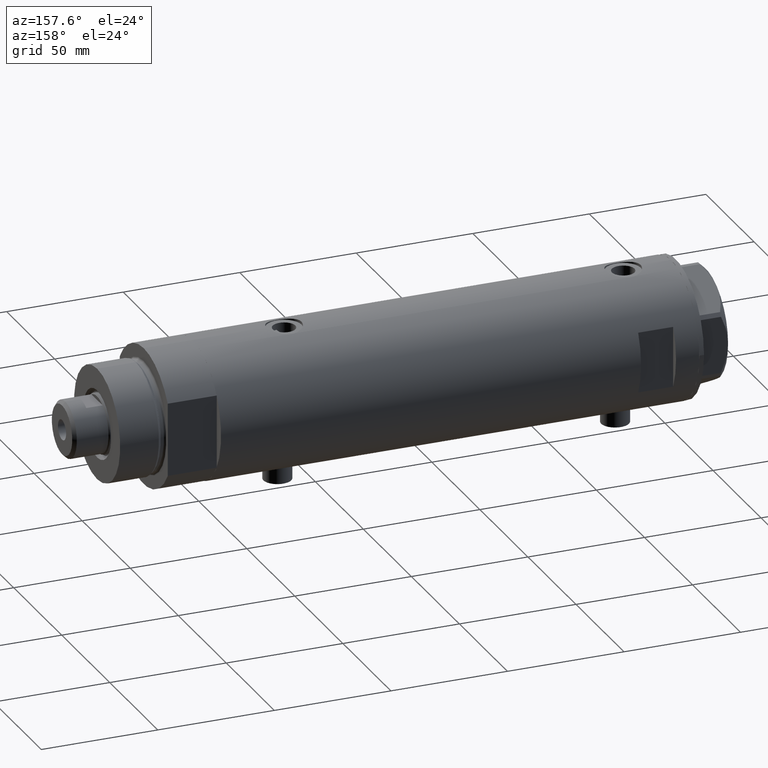
[diagram: clean part render]
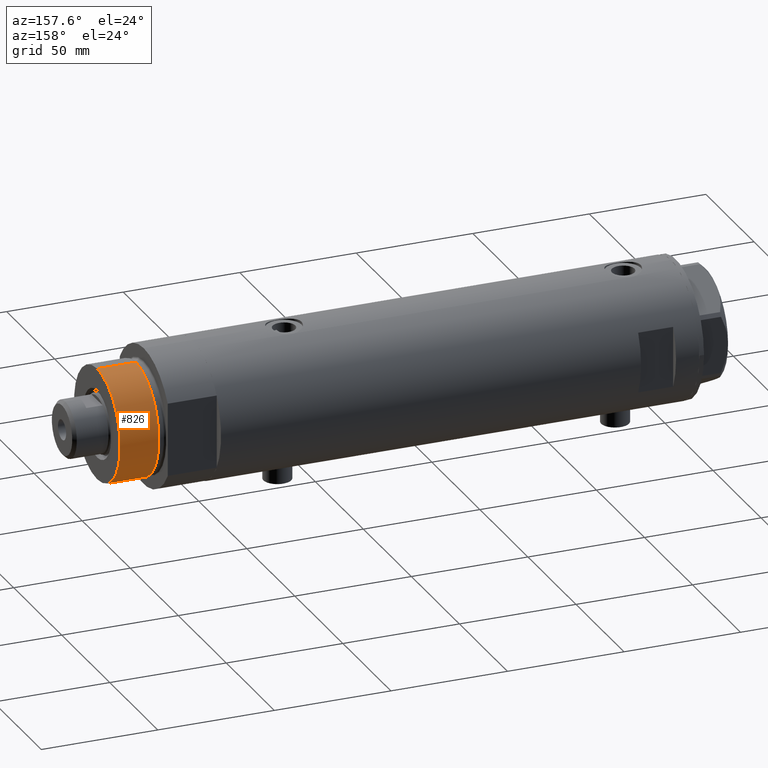
[diagram: same view with one face highlighted and labeled with its STEP entity id]
A machine part, auxiliary view. The second image highlights one B-rep face of the part: STEP entity #826.
In plain terms, the highlighted cylindrical surface (partial cylindrical patch) has radius 24 mm, axis along (-1, -0, 0).
Its self-contained STEP definition (entity closure, byte-faithful):
#76 = ORIENTED_EDGE ( 'NONE', *, *, #1818, .F. ) ;
#264 = DIRECTION ( 'NONE',  ( 1.000000000000000000, 0.000000000000000000, 0.000000000000000000 ) ) ;
#283 = EDGE_CURVE ( 'NONE', #3572, #3965, #861, .T. ) ;
#354 = CARTESIAN_POINT ( 'NONE',  ( -24.00000000000000355, 0.000000000000000000, 41.00000000000000000 ) ) ;
#461 = CIRCLE ( 'NONE', #3788, 24.00000000000000355 ) ;
#472 = ORIENTED_EDGE ( 'NONE', *, *, #1824, .T. ) ;
#714 = AXIS2_PLACEMENT_3D ( 'NONE', #1307, #2713, #2790 ) ;
#718 = VECTOR ( 'NONE', #3187, 1000.000000000000000 ) ;
#738 = VERTEX_POINT ( 'NONE', #1064 ) ;
#784 = DIRECTION ( 'NONE',  ( 1.000000000000000000, 0.000000000000000000, 0.000000000000000000 ) ) ;
#826 = ADVANCED_FACE ( 'NONE', ( #4557 ), #1261, .T. ) ;
#861 = CIRCLE ( 'NONE', #1231, 24.00000000000000355 ) ;
#1030 = EDGE_CURVE ( 'NONE', #3572, #2831, #3917, .T. ) ;
#1064 = CARTESIAN_POINT ( 'NONE',  ( -24.00000000000000355, 0.000000000000000000, 24.37384048104054557 ) ) ;
#1231 = AXIS2_PLACEMENT_3D ( 'NONE', #3124, #1999, #264 ) ;
#1261 = CYLINDRICAL_SURFACE ( 'NONE', #714, 24.00000000000000355 ) ;
#1307 = CARTESIAN_POINT ( 'NONE',  ( 0.000000000000000000, 0.000000000000000000, 41.00000000000000000 ) ) ;
#1322 = VECTOR ( 'NONE', #3640, 1000.000000000000000 ) ;
#1678 = EDGE_LOOP ( 'NONE', ( #1933, #3069, #472, #76 ) ) ;
#1818 = EDGE_CURVE ( 'NONE', #3965, #738, #3047, .T. ) ;
#1824 = EDGE_CURVE ( 'NONE', #2831, #738, #461, .T. ) ;
#1933 = ORIENTED_EDGE ( 'NONE', *, *, #283, .F. ) ;
#1999 = DIRECTION ( 'NONE',  ( 0.000000000000000000, 0.000000000000000000, 1.000000000000000000 ) ) ;
#2214 = CARTESIAN_POINT ( 'NONE',  ( 0.000000000000000000, 0.000000000000000000, 24.37384048104054557 ) ) ;
#2454 = CARTESIAN_POINT ( 'NONE',  ( 24.00000000000000355, 2.939152317953648289E-15, 41.00000000000000000 ) ) ;
#2713 = DIRECTION ( 'NONE',  ( -0.000000000000000000, -0.000000000000000000, -1.000000000000000000 ) ) ;
#2790 = DIRECTION ( 'NONE',  ( -1.000000000000000000, 0.000000000000000000, 0.000000000000000000 ) ) ;
#2831 = VERTEX_POINT ( 'NONE', #4050 ) ;
#2895 = DIRECTION ( 'NONE',  ( -0.000000000000000000, -0.000000000000000000, 1.000000000000000000 ) ) ;
#3047 = LINE ( 'NONE', #354, #1322 ) ;
#3069 = ORIENTED_EDGE ( 'NONE', *, *, #1030, .T. ) ;
#3124 = CARTESIAN_POINT ( 'NONE',  ( 0.000000000000000000, 0.000000000000000000, 41.00000000000000000 ) ) ;
#3187 = DIRECTION ( 'NONE',  ( -0.000000000000000000, -0.000000000000000000, -1.000000000000000000 ) ) ;
#3572 = VERTEX_POINT ( 'NONE', #3832 ) ;
#3640 = DIRECTION ( 'NONE',  ( -0.000000000000000000, -0.000000000000000000, -1.000000000000000000 ) ) ;
#3788 = AXIS2_PLACEMENT_3D ( 'NONE', #2214, #2895, #784 ) ;
#3832 = CARTESIAN_POINT ( 'NONE',  ( 24.00000000000000355, 2.939152317953648289E-15, 41.00000000000000000 ) ) ;
#3903 = CARTESIAN_POINT ( 'NONE',  ( -24.00000000000000355, 0.000000000000000000, 41.00000000000000000 ) ) ;
#3917 = LINE ( 'NONE', #2454, #718 ) ;
#3965 = VERTEX_POINT ( 'NONE', #3903 ) ;
#4050 = CARTESIAN_POINT ( 'NONE',  ( 24.00000000000000355, 2.939152317953648289E-15, 24.37384048104054557 ) ) ;
#4557 = FACE_OUTER_BOUND ( 'NONE', #1678, .T. ) ;